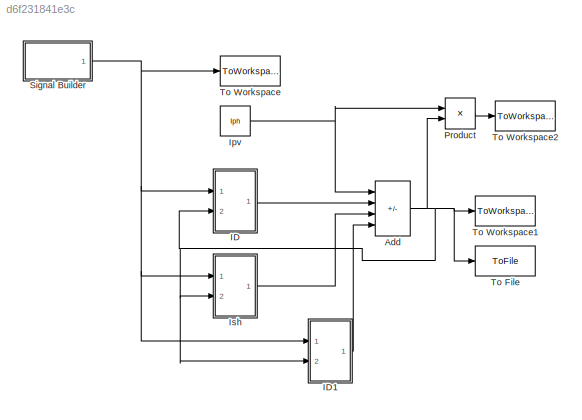
MODEL slx_d6f231841e3c
KIND model
CONFIG AbsTol = 1e-6
CONFIG EnableMultiTasking = on
CONFIG FixedStep = 0.01
CONFIG MaxStep = 1e-5
CONFIG MinStep = 1e-6
CONFIG RelTol = 1e-6
CONFIG SampleTimeConstraint = Unconstrained
CONFIG SolverName = FixedStepAuto
CONFIG StartTime = 0.0
CONFIG StopTime = 0.33
BLOCK [Sum] Add
  IconShape = rectangular
  Inputs = +---
  Ports = [4, 1]
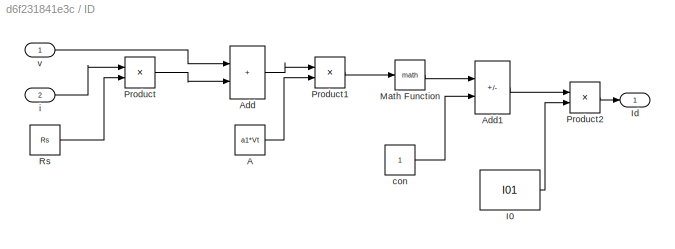
BLOCK [SubSystem] ID
  Ports = [2, 1]
  RequestExecContextInheritance = off
BLOCK [Constant] ID/A
  Value = a1*Vt
BLOCK [Sum] ID/Add
  IconShape = rectangular
  Ports = [2, 1]
BLOCK [Sum] ID/Add1
  IconShape = rectangular
  Inputs = +-
  Ports = [2, 1]
BLOCK [Constant] ID/I0
  Value = I01
BLOCK [Outport] ID/Id
BLOCK [Math] ID/Math Function
  Ports = [1, 1]
  SignedPower = on
BLOCK [Product] ID/Product
  Ports = [2, 1]
BLOCK [Product] ID/Product1
  Inputs = */
  Ports = [2, 1]
BLOCK [Product] ID/Product2
  Ports = [2, 1]
BLOCK [Constant] ID/Rs
  Value = Rs
BLOCK [Constant] ID/con
BLOCK [Inport] ID/i
  Port = 2
BLOCK [Inport] ID/v
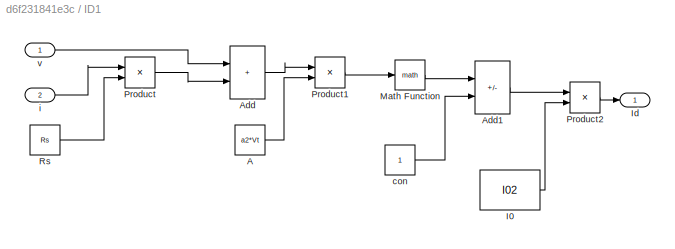
BLOCK [SubSystem] ID1
  Ports = [2, 1]
  RequestExecContextInheritance = off
BLOCK [Constant] ID1/A
  Value = a2*Vt
BLOCK [Sum] ID1/Add
  IconShape = rectangular
  Ports = [2, 1]
BLOCK [Sum] ID1/Add1
  IconShape = rectangular
  Inputs = +-
  Ports = [2, 1]
BLOCK [Constant] ID1/I0
  Value = I02
BLOCK [Outport] ID1/Id
BLOCK [Math] ID1/Math Function
  Ports = [1, 1]
  SignedPower = on
BLOCK [Product] ID1/Product
  Ports = [2, 1]
BLOCK [Product] ID1/Product1
  Inputs = */
  Ports = [2, 1]
BLOCK [Product] ID1/Product2
  Ports = [2, 1]
BLOCK [Constant] ID1/Rs
  Value = Rs
BLOCK [Constant] ID1/con
BLOCK [Inport] ID1/i
  Port = 2
BLOCK [Inport] ID1/v
BLOCK [Constant] Ipv
  Value = Iph
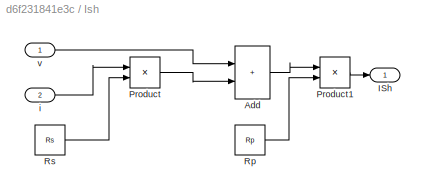
BLOCK [SubSystem] Ish
  Ports = [2, 1]
  RequestExecContextInheritance = off
BLOCK [Sum] Ish/Add
  IconShape = rectangular
  Ports = [2, 1]
BLOCK [Outport] Ish/ISh
BLOCK [Product] Ish/Product
  Ports = [2, 1]
BLOCK [Product] Ish/Product1
  Inputs = */
  Ports = [2, 1]
BLOCK [Constant] Ish/Rp
  Value = Rp
BLOCK [Constant] Ish/Rs
  Value = Rs
BLOCK [Inport] Ish/i
  Port = 2
BLOCK [Inport] Ish/v
BLOCK [Product] Product
  Ports = [2, 1]
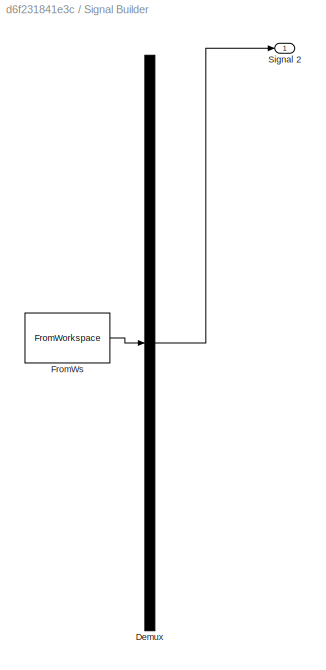
BLOCK [SubSystem] Signal Builder
  ClipboardFcn = sigbuilder_block('clipboard');
  CloseFcn = sigbuilder_block('close');
  ContinueFcn = sigbuilder_block('continue');
  CopyFcn = sigbuilder_block('copy');
  DeleteFcn = sigbuilder_block('delete');
  LoadFcn = sigbuilder_block('load');
  MaskHideContents = on
  ModelCloseFcn = sigbuilder_block('modelClose');
  NameChangeFcn = sigbuilder_block('namechange');
  OpenFcn = sigbuilder_block('open',[0 36 1152 555.6 ]);
  PauseFcn = sigbuilder_block('pause');
  Ports = [0, 1]
  PreSaveFcn = sigbuilder_block('preSave');
  RequestExecContextInheritance = off
  StartFcn = sigbuilder_block('start');
  StopFcn = sigbuilder_block('stop');
  Tag = STV Subsys
BLOCK [Demux] Signal Builder/Demux
  DisplayOption = none
  Outputs = 1
  Ports = [1, 1]
  Tag = STV Demux
BLOCK [FromWorkspace] Signal Builder/FromWs
  Tag = STV FromWs
  VariableName = tuvar
BLOCK [Outport] Signal Builder/Signal 2
  Tag = STV Outport
BLOCK [ToFile] To File
  Filename = sree.mat
  MatrixName = ii
  Ports = [1]
BLOCK [ToWorkspace] To Workspace
  FixptAsFi = on
  MaxDataPoints = inf
  Ports = [1]
  SampleTime = -1
  VariableName = v1
BLOCK [ToWorkspace] To Workspace1
  FixptAsFi = on
  MaxDataPoints = inf
  Ports = [1]
  SampleTime = -1
  VariableName = i1
BLOCK [ToWorkspace] To Workspace2
  FixptAsFi = on
  MaxDataPoints = inf
  Ports = [1]
  SampleTime = -1
  VariableName = p
NET Add:1 -> ID1:2, ID:2, Ish:2, Product:2, To File:1, To Workspace1:1
LINE ID/A:1 -> ID/Product1:2
LINE ID/Add1:1 -> ID/Product2:1
LINE ID/Add:1 -> ID/Product1:1
LINE ID/I0:1 -> ID/Product2:2
LINE ID/Math Function:1 -> ID/Add1:1
LINE ID/Product1:1 -> ID/Math Function:1
LINE ID/Product2:1 -> ID/Id:1
LINE ID/Product:1 -> ID/Add:2
LINE ID/Rs:1 -> ID/Product:2
LINE ID/con:1 -> ID/Add1:2
LINE ID/i:1 -> ID/Product:1
LINE ID/v:1 -> ID/Add:1
LINE ID1/A:1 -> ID1/Product1:2
LINE ID1/Add1:1 -> ID1/Product2:1
LINE ID1/Add:1 -> ID1/Product1:1
LINE ID1/I0:1 -> ID1/Product2:2
LINE ID1/Math Function:1 -> ID1/Add1:1
LINE ID1/Product1:1 -> ID1/Math Function:1
LINE ID1/Product2:1 -> ID1/Id:1
LINE ID1/Product:1 -> ID1/Add:2
LINE ID1/Rs:1 -> ID1/Product:2
LINE ID1/con:1 -> ID1/Add1:2
LINE ID1/i:1 -> ID1/Product:1
LINE ID1/v:1 -> ID1/Add:1
LINE ID1:1 -> Add:4
LINE ID:1 -> Add:2
NET Ipv:1 -> Add:1, Product:1
LINE Ish/Add:1 -> Ish/Product1:1
LINE Ish/Product1:1 -> Ish/ISh:1
LINE Ish/Product:1 -> Ish/Add:2
LINE Ish/Rp:1 -> Ish/Product1:2
LINE Ish/Rs:1 -> Ish/Product:2
LINE Ish/i:1 -> Ish/Product:1
LINE Ish/v:1 -> Ish/Add:1
LINE Ish:1 -> Add:3
LINE Product:1 -> To Workspace2:1
NET Signal Builder:1 -> ID1:1, ID:1, Ish:1, To Workspace:1
note: NET lines group one-source signal fan-out (src -> all destinations, sorted); 1:1 wires keep LINE
